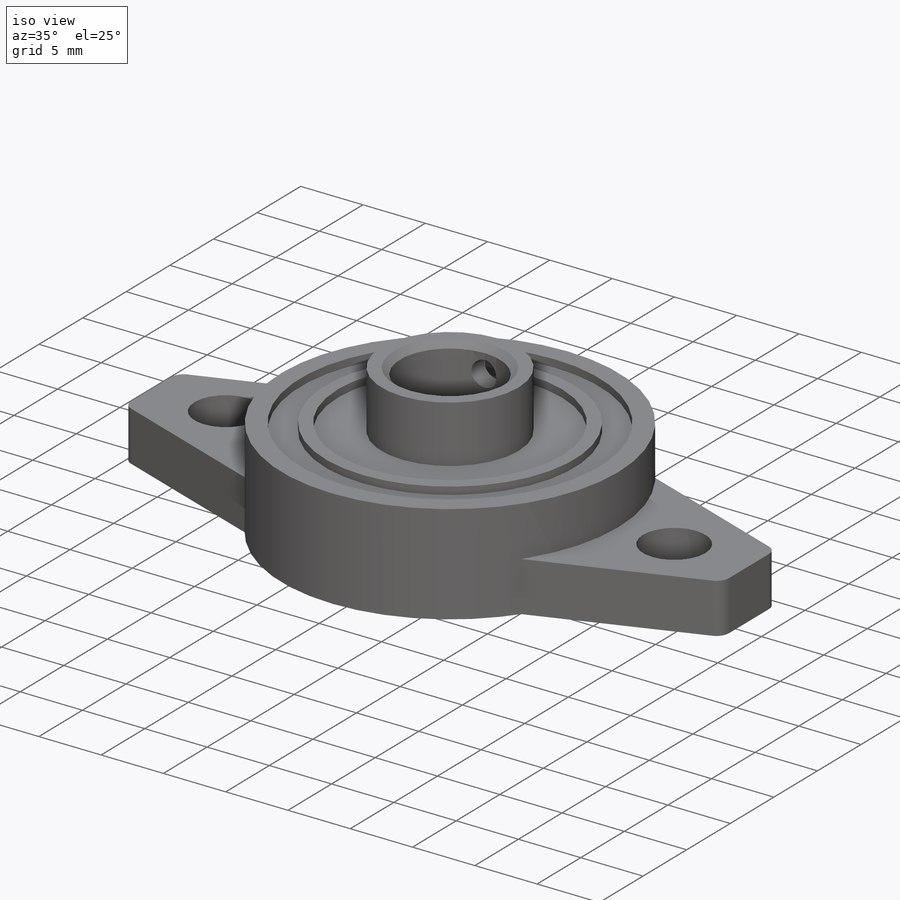
[diagram: iso view]
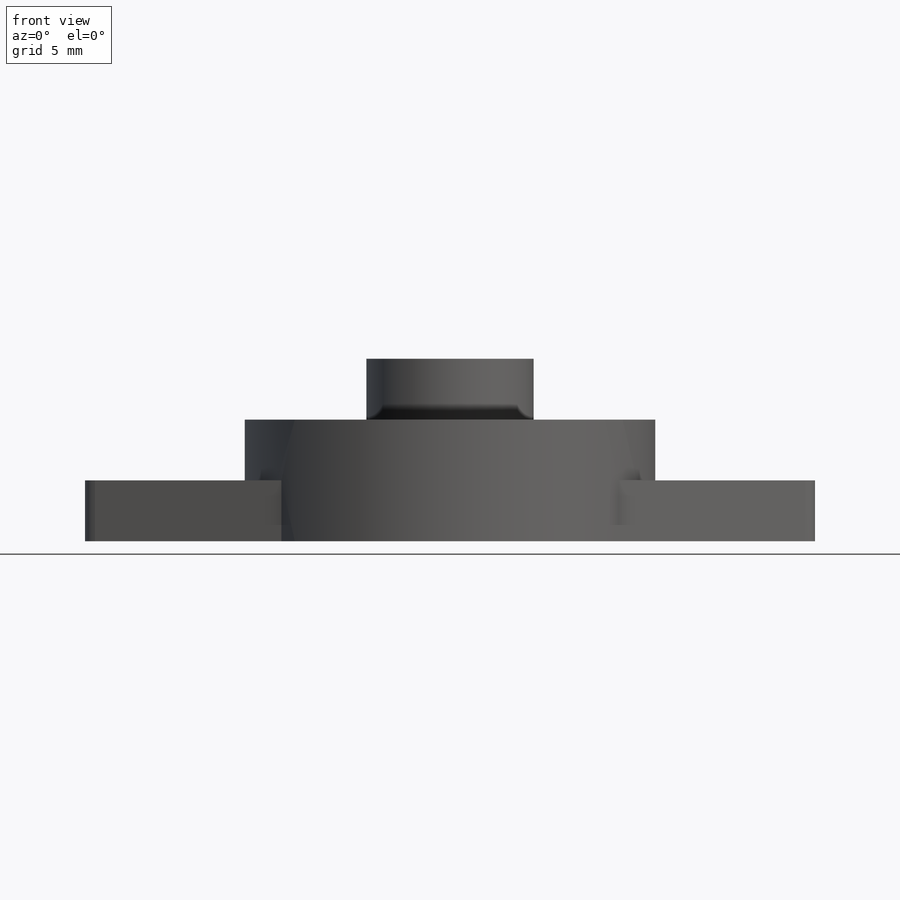
[diagram: front view]
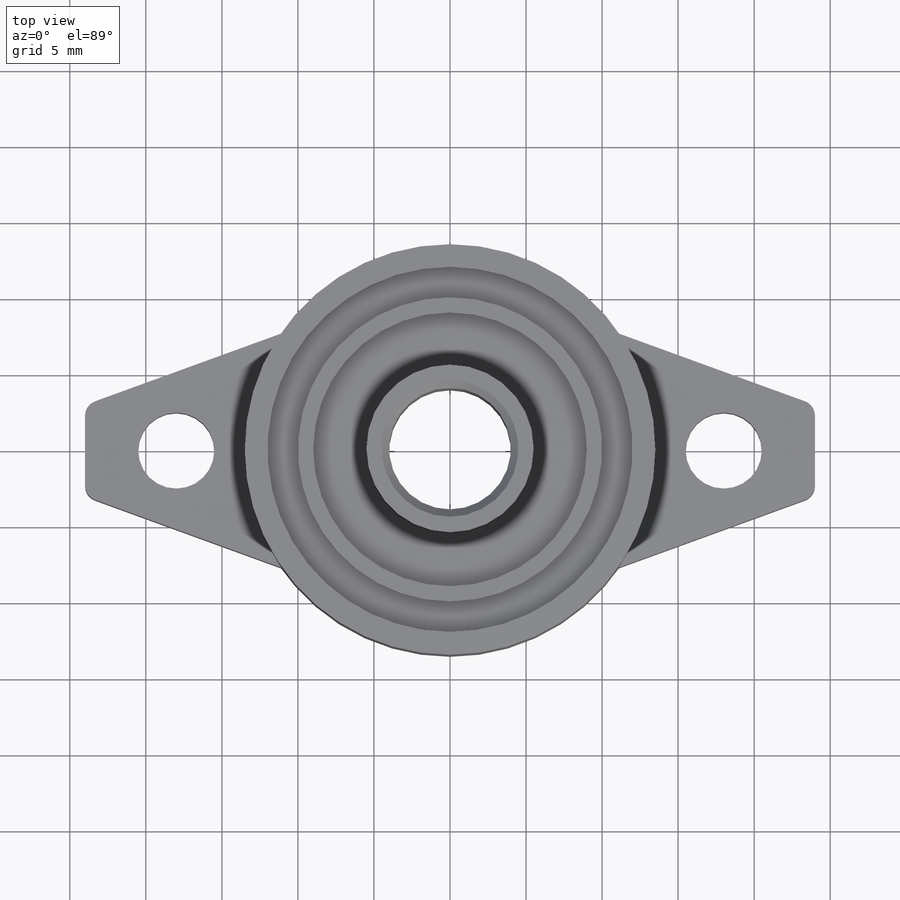
[diagram: top view]
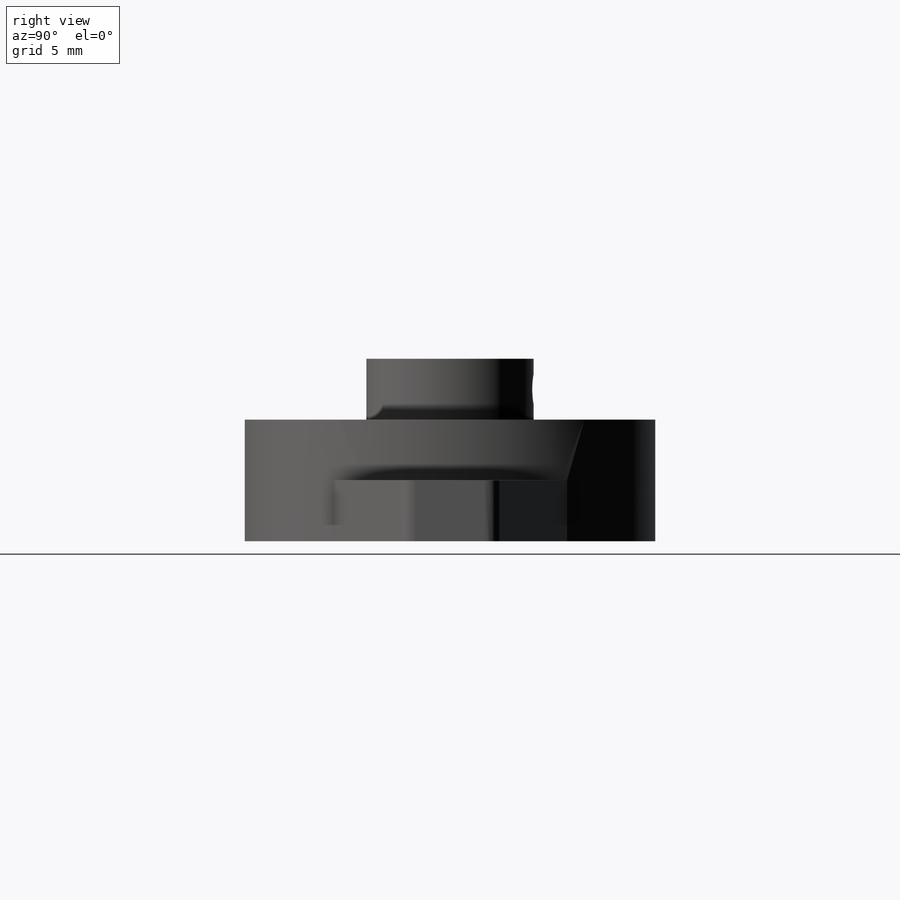
[diagram: right view]
SOLIDWORKS PART (.sldprt)
format: sldprt  version: not decoded by parser v0  size: 289,792 bytes
history: native  units: mm
features: sketch x7, cut_extrude x4, plane x3, extrude x3, material x1, chamfer x1 (+10 scaffold rows collapsed)
feature tree (29):
  scaffold x10  (default folders/planes/origin — collapsed)
  material  "材质 <未指定>"
  plane  "前视基准面"
  plane  "上视基准面"
  plane  "右视基准面"
  sketch  "草图1"  dims[c1.D2=5.0mm c1.D3=5.0mm c1.D4=27.0mm c1.D8=1.0mm c1.D1=36.0mm c1.D5=24.0mm c1.D6=3.0mm c1.D7=~12.814926mm c2.D7=110.0deg]
  extrude  "凸台-拉伸1"  Depth=4mm
  sketch  "草图2"
  extrude  "凸台-拉伸2"  Depth=4mm
  sketch  "草图3"  dims[D1=11.0mm]
  extrude  "凸台-拉伸3"  Depth=4mm
  sketch  "草图4"  dims[D1=8.0mm]
  cut_extrude  "切除-拉伸1"  [1 undecoded]
  sketch  "草图5"  dims[D1=24.0mm D2=20.0mm D3=18.0mm]
  cut_extrude  "切除-拉伸2"  Depth=0.6mm
  sketch  "草图8"  dims[D1=1.0mm]
  cut_extrude  "切除-拉伸4"  Depth=1mm
  sketch  "草图9"  dims[D1=2.0mm D2=2.0mm]
  cut_extrude  "切除-拉伸5"  [1 undecoded]
  chamfer  "倒角1"  Distance=0.5mm Angle=45deg
decode coverage: 12 of 15 modeling features carry decoded parameters
note: ~ marks probable driven/reference dimensions
note: 2 parameter values undecoded
note: suppression state not decoded; provenance and decode notes live in map.json
